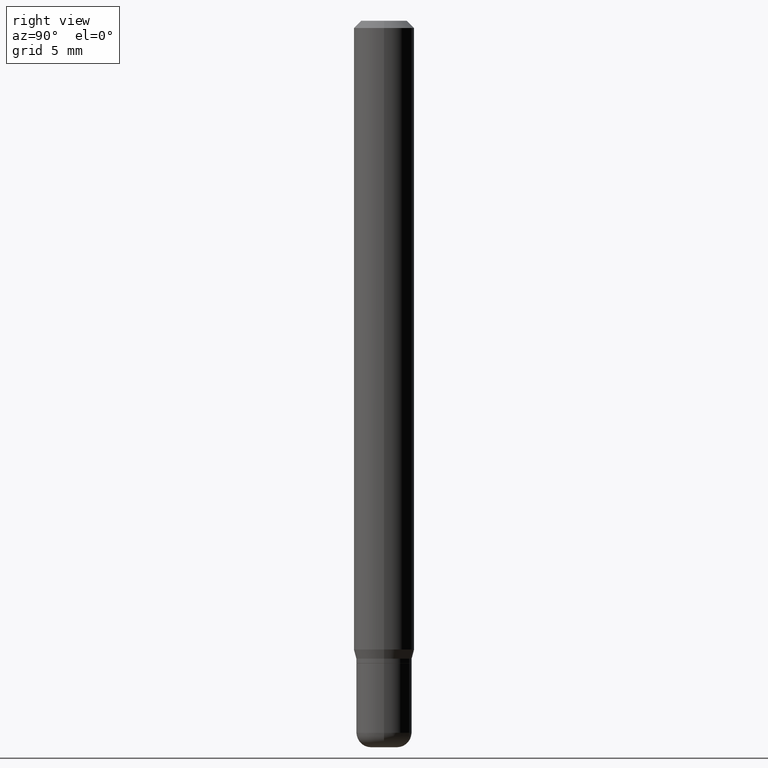
[diagram: clean part render]
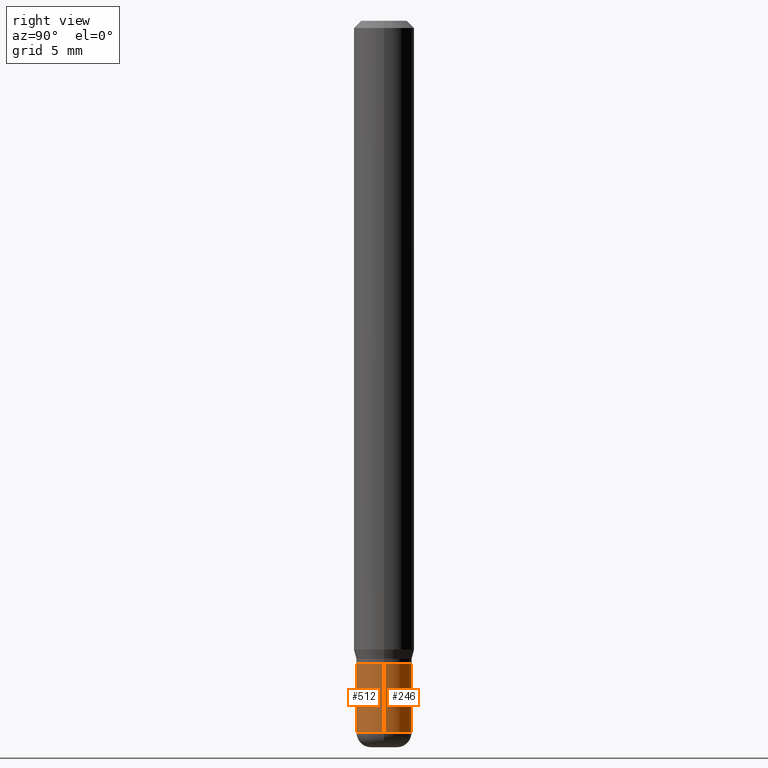
[diagram: same view with one multi-face feature highlighted, each face labeled with its STEP entity id]
A machine part, right view. The highlighted faces form ONE feature: a constant-radius fillet chain: 2 tangent blend faces with common blend radius 1.4605 mm. The faces share edges in the B-rep.
Their STEP definitions:
[1] entity #512 (Cylinder):
#3 = VERTEX_POINT ( 'NONE', #70 ) ;
#21 = CARTESIAN_POINT ( 'NONE',  ( -0.05750000000000000250, -4.474274579310081177E-15, -1.327000000000000179 ) ) ;
#37 = VERTEX_POINT ( 'NONE', #219 ) ;
#39 = DIRECTION ( 'NONE',  ( -2.445468806185136597E-29, 3.491481338843145583E-15, 1.000000000000000000 ) ) ;
#53 = DIRECTION ( 'NONE',  ( -2.445468806185136877E-29, 3.491481338843145188E-15, 1.000000000000000000 ) ) ;
#54 = EDGE_CURVE ( 'NONE', #344, #3, #418, .T. ) ;
#68 = FACE_OUTER_BOUND ( 'NONE', #209, .T. ) ;
#70 = CARTESIAN_POINT ( 'NONE',  ( 0.05750000000000000250, -5.034716090611815085E-15, -1.327000000000000179 ) ) ;
#76 = CARTESIAN_POINT ( 'NONE',  ( -0.05750000000000005801, 4.085620730620580191E-16, -2.828387676896573865E-30 ) ) ;
#85 = AXIS2_PLACEMENT_3D ( 'NONE', #432, #395, #311 ) ;
#90 = ORIENTED_EDGE ( 'NONE', *, *, #400, .F. ) ;
#115 = CIRCLE ( 'NONE', #466, 0.05750000000000012046 ) ;
#116 = CARTESIAN_POINT ( 'NONE',  ( 0.05750000000000012046, -5.533997922066385616E-15, -1.470000000000000195 ) ) ;
#121 = DIRECTION ( 'NONE',  ( 1.000000000000000000, -6.982962677686259611E-15, 0.000000000000000000 ) ) ;
#126 = VERTEX_POINT ( 'NONE', #21 ) ;
#157 = CYLINDRICAL_SURFACE ( 'NONE', #313, 0.05750000000000005801 ) ;
#171 = VECTOR ( 'NONE', #357, 39.37007874015748143 ) ;
#185 = EDGE_CURVE ( 'NONE', #126, #3, #337, .T. ) ;
#196 = LINE ( 'NONE', #76, #171 ) ;
#200 = CARTESIAN_POINT ( 'NONE',  ( 0.000000000000000000, 0.000000000000000000, 0.000000000000000000 ) ) ;
#209 = EDGE_LOOP ( 'NONE', ( #90, #332, #281, #214 ) ) ;
#214 = ORIENTED_EDGE ( 'NONE', *, *, #185, .F. ) ;
#219 = CARTESIAN_POINT ( 'NONE',  ( -0.05750000000000012046, -4.474274579310080389E-15, -1.470000000000000195 ) ) ;
#254 = CARTESIAN_POINT ( 'NONE',  ( 0.05750000000000005801, -4.015203539669607599E-16, 2.803801646082666094E-30 ) ) ;
#265 = EDGE_CURVE ( 'NONE', #37, #344, #115, .T. ) ;
#270 = DIRECTION ( 'NONE',  ( -2.445468806185136597E-29, 3.491481338843145583E-15, 1.000000000000000000 ) ) ;
#280 = DIRECTION ( 'NONE',  ( 1.000000000000000000, -6.982962677686266711E-15, 4.876176775795936353E-29 ) ) ;
#281 = ORIENTED_EDGE ( 'NONE', *, *, #54, .T. ) ;
#311 = DIRECTION ( 'NONE',  ( 1.000000000000000000, -6.982962677686273810E-15, 0.000000000000000000 ) ) ;
#313 = AXIS2_PLACEMENT_3D ( 'NONE', #200, #270, #280 ) ;
#317 = CARTESIAN_POINT ( 'NONE',  ( 3.594839145092150820E-29, -5.132477568099424807E-15, -1.470000000000000195 ) ) ;
#332 = ORIENTED_EDGE ( 'NONE', *, *, #265, .T. ) ;
#337 = CIRCLE ( 'NONE', #85, 0.05750000000000000250 ) ;
#344 = VERTEX_POINT ( 'NONE', #116 ) ;
#357 = DIRECTION ( 'NONE',  ( -2.445468806185136877E-29, 3.491481338843145188E-15, 1.000000000000000000 ) ) ;
#358 = VECTOR ( 'NONE', #53, 39.37007874015748143 ) ;
#395 = DIRECTION ( 'NONE',  ( -2.445468806185136597E-29, 3.491481338843145583E-15, 1.000000000000000000 ) ) ;
#400 = EDGE_CURVE ( 'NONE', #37, #126, #196, .T. ) ;
#418 = LINE ( 'NONE', #254, #358 ) ;
#432 = CARTESIAN_POINT ( 'NONE',  ( 3.245137105807676860E-29, -4.633195736644854276E-15, -1.327000000000000179 ) ) ;
#466 = AXIS2_PLACEMENT_3D ( 'NONE', #317, #39, #121 ) ;
#512 = ADVANCED_FACE ( 'NONE', ( #68 ), #157, .T. ) ;
[2] entity #246 (Cylinder):
#3 = VERTEX_POINT ( 'NONE', #70 ) ;
#21 = CARTESIAN_POINT ( 'NONE',  ( -0.05750000000000000250, -4.474274579310081177E-15, -1.327000000000000179 ) ) ;
#37 = VERTEX_POINT ( 'NONE', #219 ) ;
#47 = EDGE_LOOP ( 'NONE', ( #84, #327, #48, #458 ) ) ;
#48 = ORIENTED_EDGE ( 'NONE', *, *, #117, .F. ) ;
#53 = DIRECTION ( 'NONE',  ( -2.445468806185136877E-29, 3.491481338843145188E-15, 1.000000000000000000 ) ) ;
#54 = EDGE_CURVE ( 'NONE', #344, #3, #418, .T. ) ;
#61 = CIRCLE ( 'NONE', #495, 0.05750000000000012046 ) ;
#70 = CARTESIAN_POINT ( 'NONE',  ( 0.05750000000000000250, -5.034716090611815085E-15, -1.327000000000000179 ) ) ;
#76 = CARTESIAN_POINT ( 'NONE',  ( -0.05750000000000005801, 4.085620730620580191E-16, -2.828387676896573865E-30 ) ) ;
#84 = ORIENTED_EDGE ( 'NONE', *, *, #271, .T. ) ;
#110 = DIRECTION ( 'NONE',  ( -2.445468806185136597E-29, 3.491481338843145583E-15, 1.000000000000000000 ) ) ;
#114 = DIRECTION ( 'NONE',  ( 1.000000000000000000, -6.982962677686266711E-15, 4.876176775795936353E-29 ) ) ;
#116 = CARTESIAN_POINT ( 'NONE',  ( 0.05750000000000012046, -5.533997922066385616E-15, -1.470000000000000195 ) ) ;
#117 = EDGE_CURVE ( 'NONE', #3, #126, #230, .T. ) ;
#126 = VERTEX_POINT ( 'NONE', #21 ) ;
#154 = DIRECTION ( 'NONE',  ( -2.445468806185136597E-29, 3.491481338843145583E-15, 1.000000000000000000 ) ) ;
#156 = AXIS2_PLACEMENT_3D ( 'NONE', #353, #154, #114 ) ;
#171 = VECTOR ( 'NONE', #357, 39.37007874015748143 ) ;
#176 = DIRECTION ( 'NONE',  ( -2.445468806185136597E-29, 3.491481338843145583E-15, 1.000000000000000000 ) ) ;
#182 = CARTESIAN_POINT ( 'NONE',  ( 3.245137105807676860E-29, -4.633195736644854276E-15, -1.327000000000000179 ) ) ;
#196 = LINE ( 'NONE', #76, #171 ) ;
#219 = CARTESIAN_POINT ( 'NONE',  ( -0.05750000000000012046, -4.474274579310080389E-15, -1.470000000000000195 ) ) ;
#230 = CIRCLE ( 'NONE', #434, 0.05750000000000000250 ) ;
#246 = ADVANCED_FACE ( 'NONE', ( #297 ), #470, .T. ) ;
#248 = DIRECTION ( 'NONE',  ( 1.000000000000000000, -6.982962677686259611E-15, 0.000000000000000000 ) ) ;
#254 = CARTESIAN_POINT ( 'NONE',  ( 0.05750000000000005801, -4.015203539669607599E-16, 2.803801646082666094E-30 ) ) ;
#271 = EDGE_CURVE ( 'NONE', #344, #37, #61, .T. ) ;
#297 = FACE_OUTER_BOUND ( 'NONE', #47, .T. ) ;
#325 = CARTESIAN_POINT ( 'NONE',  ( 3.594839145092150820E-29, -5.132477568099424807E-15, -1.470000000000000195 ) ) ;
#327 = ORIENTED_EDGE ( 'NONE', *, *, #400, .T. ) ;
#344 = VERTEX_POINT ( 'NONE', #116 ) ;
#353 = CARTESIAN_POINT ( 'NONE',  ( 0.000000000000000000, 0.000000000000000000, 0.000000000000000000 ) ) ;
#357 = DIRECTION ( 'NONE',  ( -2.445468806185136877E-29, 3.491481338843145188E-15, 1.000000000000000000 ) ) ;
#358 = VECTOR ( 'NONE', #53, 39.37007874015748143 ) ;
#387 = DIRECTION ( 'NONE',  ( 1.000000000000000000, -6.982962677686273810E-15, 0.000000000000000000 ) ) ;
#400 = EDGE_CURVE ( 'NONE', #37, #126, #196, .T. ) ;
#418 = LINE ( 'NONE', #254, #358 ) ;
#434 = AXIS2_PLACEMENT_3D ( 'NONE', #182, #110, #387 ) ;
#458 = ORIENTED_EDGE ( 'NONE', *, *, #54, .F. ) ;
#470 = CYLINDRICAL_SURFACE ( 'NONE', #156, 0.05750000000000005801 ) ;
#495 = AXIS2_PLACEMENT_3D ( 'NONE', #325, #176, #248 ) ;